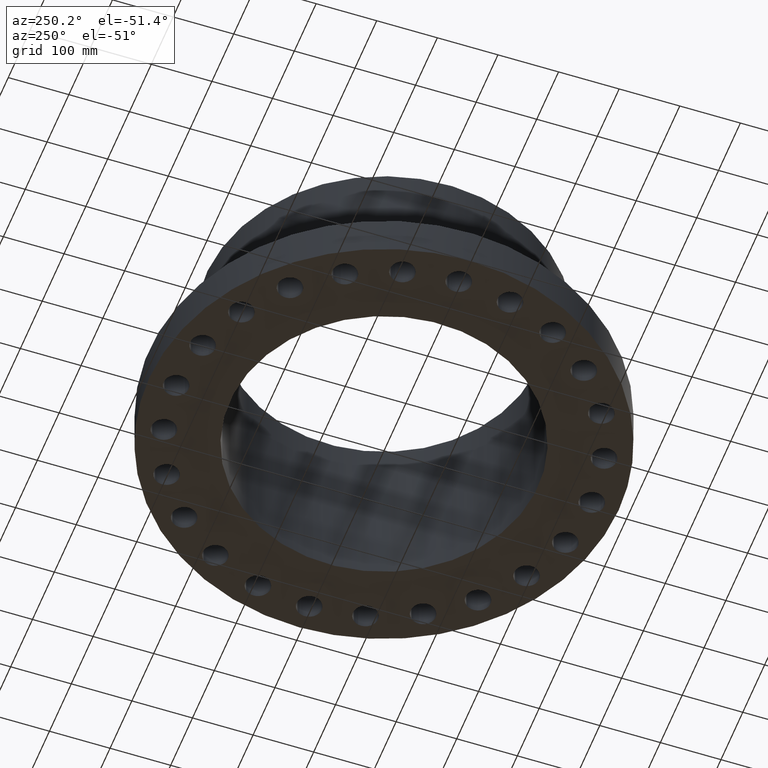
[diagram: clean part render]
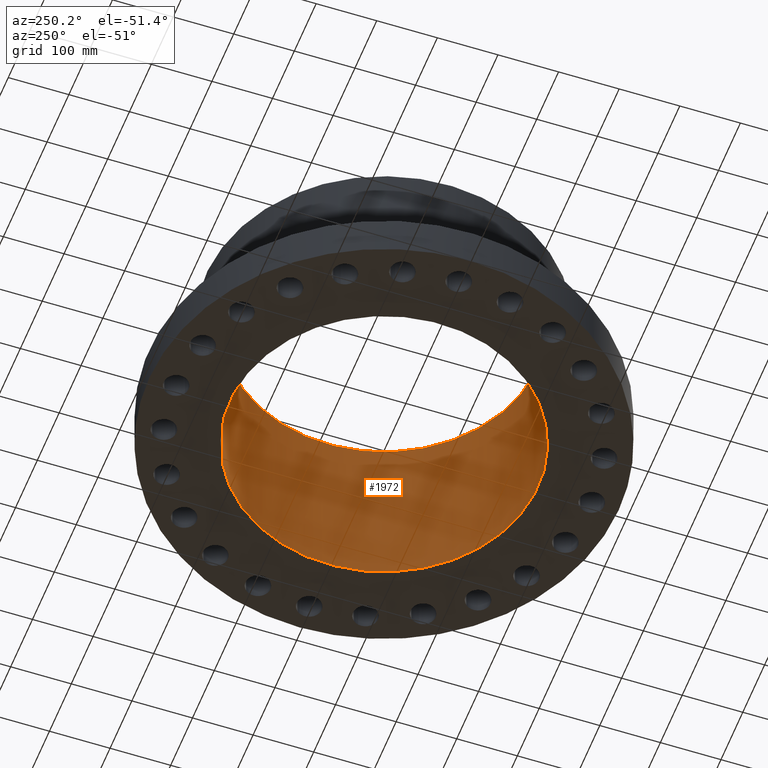
[diagram: same view with one face highlighted and labeled with its STEP entity id]
A machine part, auxiliary view. The second image highlights one B-rep face of the part: STEP entity #1972.
In plain terms, the highlighted cylindrical surface (partial cylindrical patch) has radius 254 mm, axis along (0, 0, -1).
Its self-contained STEP definition (entity closure, byte-faithful):
#1755=AXIS2_PLACEMENT_3D('Circle Axis2P3D',#1753,#1754,$) ;
#1945=AXIS2_PLACEMENT_3D('Cylinder Axis2P3D',#1942,#1943,#1944) ;
#1949=AXIS2_PLACEMENT_3D('Circle Axis2P3D',#1947,#1948,$) ;
#1748=CARTESIAN_POINT('Vertex',(-4.79425538606,-8.77582561894,11.75)) ;
#1750=CARTESIAN_POINT('Vertex',(4.79425538606,8.77582561894,11.75)) ;
#1753=CARTESIAN_POINT('Axis2P3D Location',(0.,0.,11.75)) ;
#1942=CARTESIAN_POINT('Axis2P3D Location',(0.,0.,5.75000000002)) ;
#1947=CARTESIAN_POINT('Axis2P3D Location',(0.,0.,0.)) ;
#1951=CARTESIAN_POINT('Vertex',(-4.79425538606,-8.77582561894,0.)) ;
#1953=CARTESIAN_POINT('Vertex',(4.79425538606,8.77582561894,0.)) ;
#1956=CARTESIAN_POINT('Line Origine',(-4.79425538606,-8.77582561894,5.87500000002)) ;
#1961=CARTESIAN_POINT('Line Origine',(4.79425538606,8.77582561894,5.87500000002)) ;
#1754=DIRECTION('Axis2P3D Direction',(0.,0.,-0.0393700787402)) ;
#1943=DIRECTION('Axis2P3D Direction',(0.,0.,-0.0393700787402)) ;
#1944=DIRECTION('Axis2P3D XDirection',(-0.0188750212049,-0.0345504945626,0.)) ;
#1948=DIRECTION('Axis2P3D Direction',(0.,0.,-0.0393700787402)) ;
#1957=DIRECTION('Vector Direction',(0.,0.,-0.0393700787402)) ;
#1962=DIRECTION('Vector Direction',(0.,0.,-0.0393700787402)) ;
#1958=VECTOR('Line Direction',#1957,0.0393700787402) ;
#1963=VECTOR('Line Direction',#1962,0.0393700787402) ;
#1967=ORIENTED_EDGE('',*,*,#1955,.F.) ;
#1968=ORIENTED_EDGE('',*,*,#1960,.F.) ;
#1969=ORIENTED_EDGE('',*,*,#1757,.F.) ;
#1970=ORIENTED_EDGE('',*,*,#1965,.T.) ;
#1972=ADVANCED_FACE('PartBody',(#1971),#1946,.F.) ;
#1756=CIRCLE('generated circle',#1755,10.) ;
#1950=CIRCLE('generated circle',#1949,10.) ;
#1946=CYLINDRICAL_SURFACE('generated cylinder',#1945,10.) ;
#1757=EDGE_CURVE('',#1751,#1749,#1756,.T.) ;
#1955=EDGE_CURVE('',#1952,#1954,#1950,.F.) ;
#1960=EDGE_CURVE('',#1749,#1952,#1959,.T.) ;
#1965=EDGE_CURVE('',#1751,#1954,#1964,.T.) ;
#1966=EDGE_LOOP('',(#1967,#1968,#1969,#1970)) ;
#1971=FACE_OUTER_BOUND('',#1966,.T.) ;
#1959=LINE('Line',#1956,#1958) ;
#1964=LINE('Line',#1961,#1963) ;
#1749=VERTEX_POINT('',#1748) ;
#1751=VERTEX_POINT('',#1750) ;
#1952=VERTEX_POINT('',#1951) ;
#1954=VERTEX_POINT('',#1953) ;